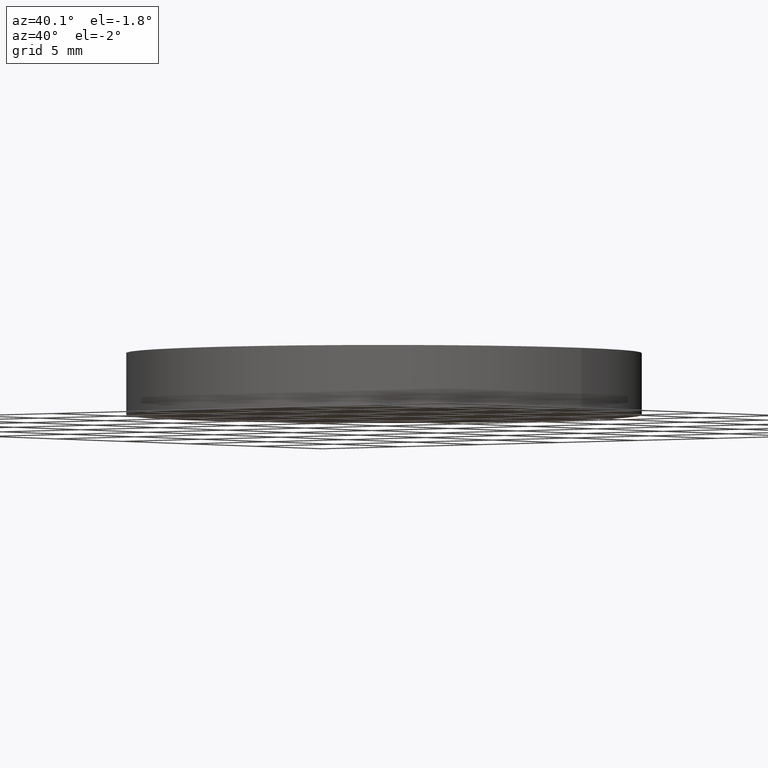
[diagram: clean part render]
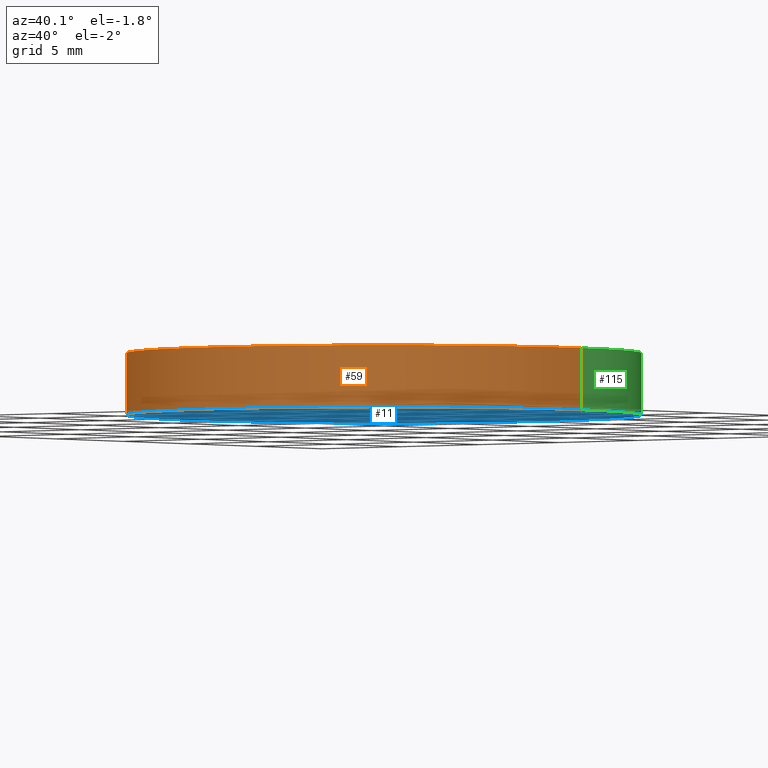
[diagram: same view with three faces highlighted in distinct colors, each labeled with its STEP entity id]
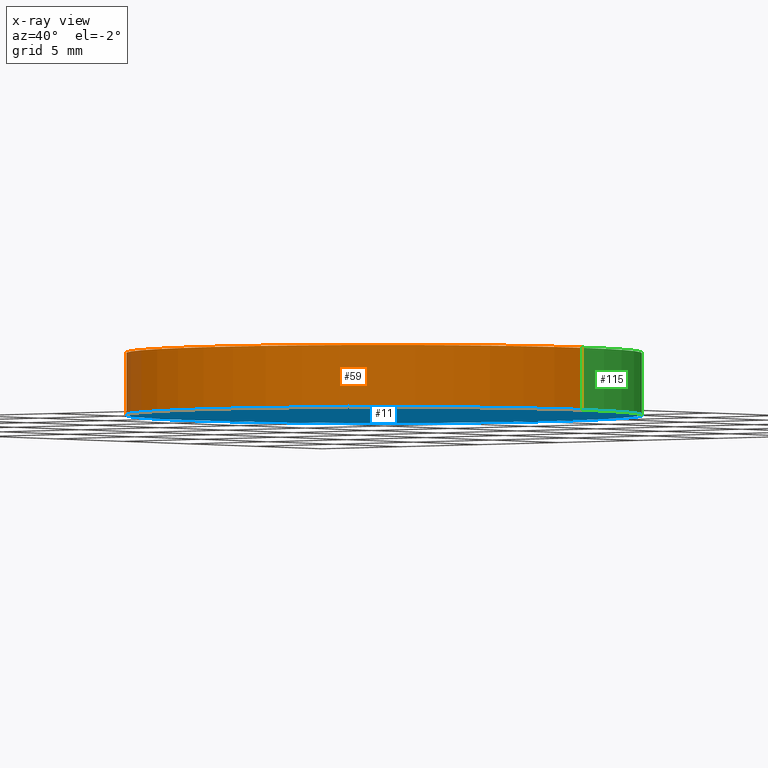
[diagram: x-ray of the same camera — body ghosted, the three highlighted faces saturated]
A machine part, auxiliary view with three faces highlighted in distinct colors.
The next image is the same camera in x-ray (body ghosted, the three faces saturated) — at least one of them is partly hidden behind the body in this view.
Their STEP definitions:

[orange] entity #59 — the highlighted cylindrical surface (partial cylindrical patch) has radius 12.5 mm, axis along (-0, -0, -1).
#1 = ORIENTED_EDGE ( 'NONE', *, *, #72, .F. ) ;
#7 = DIRECTION ( 'NONE',  ( 0.0000000000000000000, 0.0000000000000000000, 1.000000000000000000 ) ) ;
#15 = ORIENTED_EDGE ( 'NONE', *, *, #89, .T. ) ;
#17 = EDGE_LOOP ( 'NONE', ( #1, #60, #15, #113 ) ) ;
#29 = AXIS2_PLACEMENT_3D ( 'NONE', #90, #133, #67 ) ;
#35 = CARTESIAN_POINT ( 'NONE',  ( -12.50000000000000000, 0.0000000000000000000, 3.000000000000000000 ) ) ;
#37 = AXIS2_PLACEMENT_3D ( 'NONE', #86, #7, #74 ) ;
#38 = DIRECTION ( 'NONE',  ( -0.0000000000000000000, -0.0000000000000000000, -1.000000000000000000 ) ) ;
#43 = CARTESIAN_POINT ( 'NONE',  ( 12.50000000000000000, 1.530808498934191500E-015, 3.000000000000000000 ) ) ;
#48 = VECTOR ( 'NONE', #140, 1000.000000000000000 ) ;
#50 = DIRECTION ( 'NONE',  ( 1.000000000000000000, 0.0000000000000000000, 0.0000000000000000000 ) ) ;
#52 = CARTESIAN_POINT ( 'NONE',  ( -12.50000000000000000, 0.0000000000000000000, 0.0000000000000000000 ) ) ;
#53 = LINE ( 'NONE', #35, #48 ) ;
#56 = FACE_OUTER_BOUND ( 'NONE', #17, .T. ) ;
#57 = AXIS2_PLACEMENT_3D ( 'NONE', #130, #122, #50 ) ;
#59 = ADVANCED_FACE ( 'NONE', ( #56 ), #108, .T. ) ;
#60 = ORIENTED_EDGE ( 'NONE', *, *, #80, .F. ) ;
#67 = DIRECTION ( 'NONE',  ( -1.000000000000000000, 0.0000000000000000000, 0.0000000000000000000 ) ) ;
#70 = VERTEX_POINT ( 'NONE', #52 ) ;
#71 = CARTESIAN_POINT ( 'NONE',  ( -12.50000000000000000, 0.0000000000000000000, 3.000000000000000000 ) ) ;
#72 = EDGE_CURVE ( 'NONE', #110, #97, #75, .T. ) ;
#73 = CARTESIAN_POINT ( 'NONE',  ( 12.50000000000000000, 1.530808498934191500E-015, 3.000000000000000000 ) ) ;
#74 = DIRECTION ( 'NONE',  ( 1.000000000000000000, 0.0000000000000000000, 0.0000000000000000000 ) ) ;
#75 = LINE ( 'NONE', #43, #114 ) ;
#79 = EDGE_CURVE ( 'NONE', #70, #97, #136, .T. ) ;
#80 = EDGE_CURVE ( 'NONE', #85, #110, #131, .T. ) ;
#83 = CARTESIAN_POINT ( 'NONE',  ( 12.50000000000000000, 1.530808498934191500E-015, 0.0000000000000000000 ) ) ;
#85 = VERTEX_POINT ( 'NONE', #71 ) ;
#86 = CARTESIAN_POINT ( 'NONE',  ( 0.0000000000000000000, 0.0000000000000000000, 0.0000000000000000000 ) ) ;
#89 = EDGE_CURVE ( 'NONE', #85, #70, #53, .T. ) ;
#90 = CARTESIAN_POINT ( 'NONE',  ( 0.0000000000000000000, 0.0000000000000000000, 3.000000000000000000 ) ) ;
#97 = VERTEX_POINT ( 'NONE', #83 ) ;
#108 = CYLINDRICAL_SURFACE ( 'NONE', #29, 12.50000000000000000 ) ;
#110 = VERTEX_POINT ( 'NONE', #73 ) ;
#113 = ORIENTED_EDGE ( 'NONE', *, *, #79, .T. ) ;
#114 = VECTOR ( 'NONE', #38, 1000.000000000000000 ) ;
#122 = DIRECTION ( 'NONE',  ( 0.0000000000000000000, 0.0000000000000000000, 1.000000000000000000 ) ) ;
#130 = CARTESIAN_POINT ( 'NONE',  ( 0.0000000000000000000, 0.0000000000000000000, 3.000000000000000000 ) ) ;
#131 = CIRCLE ( 'NONE', #57, 12.50000000000000000 ) ;
#133 = DIRECTION ( 'NONE',  ( -0.0000000000000000000, -0.0000000000000000000, -1.000000000000000000 ) ) ;
#136 = CIRCLE ( 'NONE', #37, 12.50000000000000000 ) ;
#140 = DIRECTION ( 'NONE',  ( -0.0000000000000000000, -0.0000000000000000000, -1.000000000000000000 ) ) ;

[blue] entity #11 — the highlighted planar face has unit normal (0, 0, 1).
#7 = DIRECTION ( 'NONE',  ( 0.0000000000000000000, 0.0000000000000000000, 1.000000000000000000 ) ) ;
#8 = FACE_OUTER_BOUND ( 'NONE', #18, .T. ) ;
#11 = ADVANCED_FACE ( 'NONE', ( #8 ), #87, .F. ) ;
#18 = EDGE_LOOP ( 'NONE', ( #68, #91 ) ) ;
#21 = AXIS2_PLACEMENT_3D ( 'NONE', #124, #28, #111 ) ;
#27 = DIRECTION ( 'NONE',  ( 0.0000000000000000000, 0.0000000000000000000, 1.000000000000000000 ) ) ;
#28 = DIRECTION ( 'NONE',  ( 0.0000000000000000000, 0.0000000000000000000, 1.000000000000000000 ) ) ;
#36 = CARTESIAN_POINT ( 'NONE',  ( 0.0000000000000000000, 0.0000000000000000000, 0.0000000000000000000 ) ) ;
#37 = AXIS2_PLACEMENT_3D ( 'NONE', #86, #7, #74 ) ;
#47 = AXIS2_PLACEMENT_3D ( 'NONE', #36, #27, #51 ) ;
#51 = DIRECTION ( 'NONE',  ( 1.000000000000000000, 0.0000000000000000000, -0.0000000000000000000 ) ) ;
#52 = CARTESIAN_POINT ( 'NONE',  ( -12.50000000000000000, 0.0000000000000000000, 0.0000000000000000000 ) ) ;
#68 = ORIENTED_EDGE ( 'NONE', *, *, #79, .F. ) ;
#70 = VERTEX_POINT ( 'NONE', #52 ) ;
#74 = DIRECTION ( 'NONE',  ( 1.000000000000000000, 0.0000000000000000000, 0.0000000000000000000 ) ) ;
#79 = EDGE_CURVE ( 'NONE', #70, #97, #136, .T. ) ;
#82 = CIRCLE ( 'NONE', #21, 12.50000000000000000 ) ;
#83 = CARTESIAN_POINT ( 'NONE',  ( 12.50000000000000000, 1.530808498934191500E-015, 0.0000000000000000000 ) ) ;
#86 = CARTESIAN_POINT ( 'NONE',  ( 0.0000000000000000000, 0.0000000000000000000, 0.0000000000000000000 ) ) ;
#87 = PLANE ( 'NONE',  #47 ) ;
#88 = EDGE_CURVE ( 'NONE', #97, #70, #82, .T. ) ;
#91 = ORIENTED_EDGE ( 'NONE', *, *, #88, .F. ) ;
#97 = VERTEX_POINT ( 'NONE', #83 ) ;
#111 = DIRECTION ( 'NONE',  ( 1.000000000000000000, 0.0000000000000000000, 0.0000000000000000000 ) ) ;
#124 = CARTESIAN_POINT ( 'NONE',  ( 0.0000000000000000000, 0.0000000000000000000, 0.0000000000000000000 ) ) ;
#136 = CIRCLE ( 'NONE', #37, 12.50000000000000000 ) ;

[green] entity #115 — the highlighted cylindrical surface (partial cylindrical patch) has radius 12.5 mm, axis along (-0, -0, -1).
#4 = CARTESIAN_POINT ( 'NONE',  ( 0.0000000000000000000, 0.0000000000000000000, 3.000000000000000000 ) ) ;
#9 = CIRCLE ( 'NONE', #84, 12.50000000000000000 ) ;
#13 = DIRECTION ( 'NONE',  ( -1.000000000000000000, 0.0000000000000000000, 0.0000000000000000000 ) ) ;
#21 = AXIS2_PLACEMENT_3D ( 'NONE', #124, #28, #111 ) ;
#22 = DIRECTION ( 'NONE',  ( 0.0000000000000000000, 0.0000000000000000000, 1.000000000000000000 ) ) ;
#23 = FACE_OUTER_BOUND ( 'NONE', #100, .T. ) ;
#26 = ORIENTED_EDGE ( 'NONE', *, *, #128, .F. ) ;
#28 = DIRECTION ( 'NONE',  ( 0.0000000000000000000, 0.0000000000000000000, 1.000000000000000000 ) ) ;
#34 = AXIS2_PLACEMENT_3D ( 'NONE', #4, #129, #13 ) ;
#35 = CARTESIAN_POINT ( 'NONE',  ( -12.50000000000000000, 0.0000000000000000000, 3.000000000000000000 ) ) ;
#38 = DIRECTION ( 'NONE',  ( -0.0000000000000000000, -0.0000000000000000000, -1.000000000000000000 ) ) ;
#40 = ORIENTED_EDGE ( 'NONE', *, *, #88, .T. ) ;
#43 = CARTESIAN_POINT ( 'NONE',  ( 12.50000000000000000, 1.530808498934191500E-015, 3.000000000000000000 ) ) ;
#48 = VECTOR ( 'NONE', #140, 1000.000000000000000 ) ;
#52 = CARTESIAN_POINT ( 'NONE',  ( -12.50000000000000000, 0.0000000000000000000, 0.0000000000000000000 ) ) ;
#53 = LINE ( 'NONE', #35, #48 ) ;
#62 = DIRECTION ( 'NONE',  ( 1.000000000000000000, 0.0000000000000000000, 0.0000000000000000000 ) ) ;
#70 = VERTEX_POINT ( 'NONE', #52 ) ;
#71 = CARTESIAN_POINT ( 'NONE',  ( -12.50000000000000000, 0.0000000000000000000, 3.000000000000000000 ) ) ;
#72 = EDGE_CURVE ( 'NONE', #110, #97, #75, .T. ) ;
#73 = CARTESIAN_POINT ( 'NONE',  ( 12.50000000000000000, 1.530808498934191500E-015, 3.000000000000000000 ) ) ;
#75 = LINE ( 'NONE', #43, #114 ) ;
#82 = CIRCLE ( 'NONE', #21, 12.50000000000000000 ) ;
#83 = CARTESIAN_POINT ( 'NONE',  ( 12.50000000000000000, 1.530808498934191500E-015, 0.0000000000000000000 ) ) ;
#84 = AXIS2_PLACEMENT_3D ( 'NONE', #93, #22, #62 ) ;
#85 = VERTEX_POINT ( 'NONE', #71 ) ;
#88 = EDGE_CURVE ( 'NONE', #97, #70, #82, .T. ) ;
#89 = EDGE_CURVE ( 'NONE', #85, #70, #53, .T. ) ;
#93 = CARTESIAN_POINT ( 'NONE',  ( 0.0000000000000000000, 0.0000000000000000000, 3.000000000000000000 ) ) ;
#97 = VERTEX_POINT ( 'NONE', #83 ) ;
#100 = EDGE_LOOP ( 'NONE', ( #26, #104, #40, #126 ) ) ;
#104 = ORIENTED_EDGE ( 'NONE', *, *, #72, .T. ) ;
#110 = VERTEX_POINT ( 'NONE', #73 ) ;
#111 = DIRECTION ( 'NONE',  ( 1.000000000000000000, 0.0000000000000000000, 0.0000000000000000000 ) ) ;
#114 = VECTOR ( 'NONE', #38, 1000.000000000000000 ) ;
#115 = ADVANCED_FACE ( 'NONE', ( #23 ), #125, .T. ) ;
#124 = CARTESIAN_POINT ( 'NONE',  ( 0.0000000000000000000, 0.0000000000000000000, 0.0000000000000000000 ) ) ;
#125 = CYLINDRICAL_SURFACE ( 'NONE', #34, 12.50000000000000000 ) ;
#126 = ORIENTED_EDGE ( 'NONE', *, *, #89, .F. ) ;
#128 = EDGE_CURVE ( 'NONE', #110, #85, #9, .T. ) ;
#129 = DIRECTION ( 'NONE',  ( -0.0000000000000000000, -0.0000000000000000000, -1.000000000000000000 ) ) ;
#140 = DIRECTION ( 'NONE',  ( -0.0000000000000000000, -0.0000000000000000000, -1.000000000000000000 ) ) ;